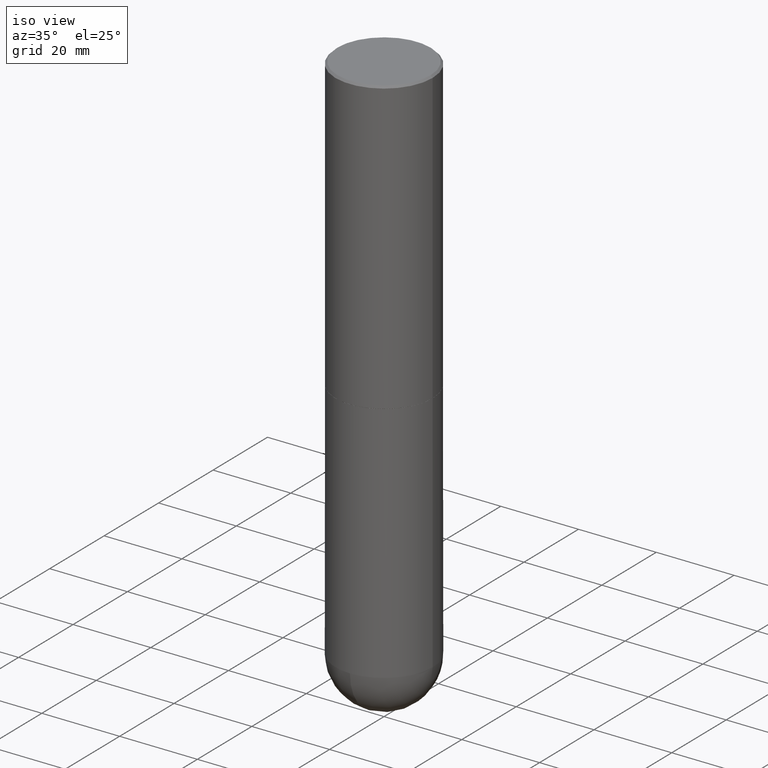
[diagram: clean part render]
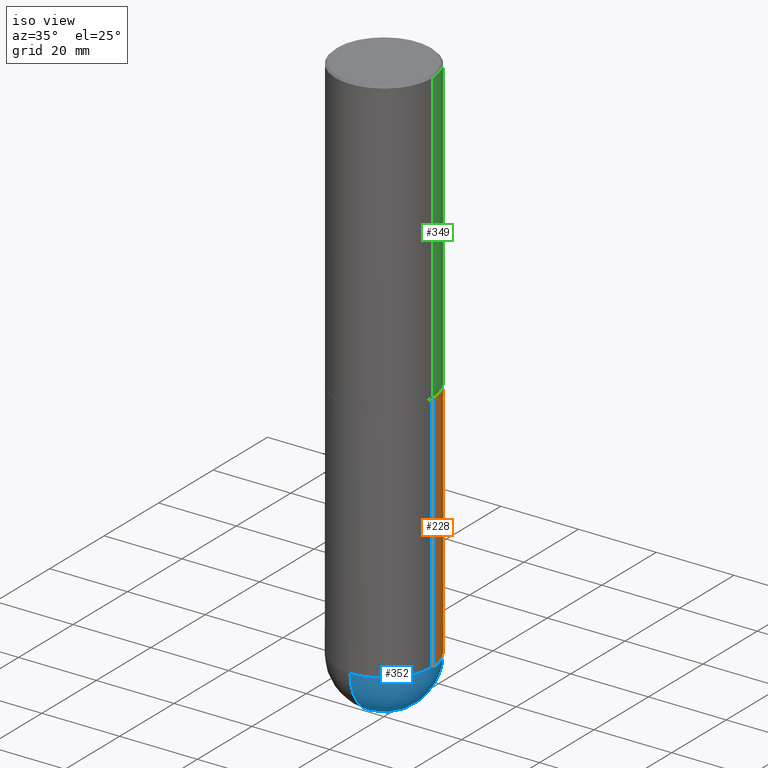
[diagram: same view with three faces highlighted in distinct colors, each labeled with its STEP entity id]
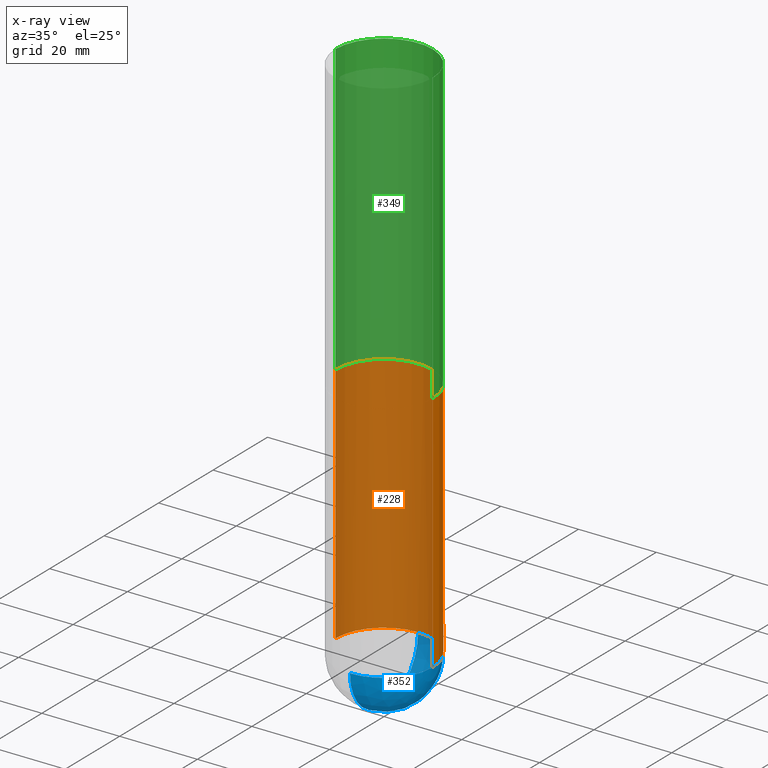
[diagram: x-ray of the same camera — body ghosted, the three highlighted faces saturated]
A machine part, iso view with three faces highlighted in distinct colors.
The next image is the same camera in x-ray (body ghosted, the three faces saturated) — at least one of them is partly hidden behind the body in this view.
Their STEP definitions:

[orange] entity #228 — the highlighted cylindrical surface (partial cylindrical patch) has radius 12.5006 mm, axis along (-0, 0, 1).
#17 = DIRECTION ( 'NONE',  ( 1.000000000000000000, -6.982962677686265922E-15, 0.000000000000000000 ) ) ;
#19 = AXIS2_PLACEMENT_3D ( 'NONE', #363, #191, #17 ) ;
#22 = DIRECTION ( 'NONE',  ( -2.445468806185136597E-29, 3.491481338843145583E-15, 1.000000000000000000 ) ) ;
#24 = CARTESIAN_POINT ( 'NONE',  ( -0.4921499999999999764, -1.110801765337101862E-14, -5.413349999999999440 ) ) ;
#28 = EDGE_CURVE ( 'NONE', #285, #208, #350, .T. ) ;
#31 = EDGE_CURVE ( 'NONE', #208, #78, #187, .T. ) ;
#43 = VERTEX_POINT ( 'NONE', #336 ) ;
#50 = AXIS2_PLACEMENT_3D ( 'NONE', #403, #335, #56 ) ;
#54 = DIRECTION ( 'NONE',  ( -2.445468806185136877E-29, 3.491481338843145188E-15, 1.000000000000000000 ) ) ;
#56 = DIRECTION ( 'NONE',  ( 1.000000000000000000, -6.982962677686265922E-15, 4.876176775795935793E-29 ) ) ;
#78 = VERTEX_POINT ( 'NONE', #24 ) ;
#79 = CARTESIAN_POINT ( 'NONE',  ( -0.4921499999999999764, 3.496936074043332897E-15, -2.420853904668951509E-29 ) ) ;
#100 = ORIENTED_EDGE ( 'NONE', *, *, #375, .T. ) ;
#104 = CARTESIAN_POINT ( 'NONE',  ( 1.323817856196230713E-28, -1.890061050562653856E-14, -5.413349999999999440 ) ) ;
#123 = VERTEX_POINT ( 'NONE', #256 ) ;
#128 = VECTOR ( 'NONE', #373, 39.37007874015748143 ) ;
#130 = CARTESIAN_POINT ( 'NONE',  ( 3.436665081823426728E-15, 0.4921499999999808250, -5.413350000000002105 ) ) ;
#136 = CARTESIAN_POINT ( 'NONE',  ( 0.4921499999999999764, -3.436665081823295777E-15, 2.399810400207969603E-29 ) ) ;
#156 = DIRECTION ( 'NONE',  ( -2.445468806185136597E-29, 3.491481338843145583E-15, 1.000000000000000000 ) ) ;
#159 = LINE ( 'NONE', #79, #251 ) ;
#162 = EDGE_CURVE ( 'NONE', #285, #123, #405, .T. ) ;
#167 = AXIS2_PLACEMENT_3D ( 'NONE', #104, #22, #213 ) ;
#187 = CIRCLE ( 'NONE', #292, 0.4921499999999999764 ) ;
#188 = CARTESIAN_POINT ( 'NONE',  ( 1.323817856196230713E-28, -1.890061050562653856E-14, -5.413349999999999440 ) ) ;
#191 = DIRECTION ( 'NONE',  ( -2.445468806185136597E-29, 3.491481338843145583E-15, 1.000000000000000000 ) ) ;
#198 = EDGE_LOOP ( 'NONE', ( #317, #100, #241, #257, #298 ) ) ;
#208 = VERTEX_POINT ( 'NONE', #130 ) ;
#213 = DIRECTION ( 'NONE',  ( 1.000000000000000000, -6.982962677686265922E-15, 0.000000000000000000 ) ) ;
#228 = ADVANCED_FACE ( 'NONE', ( #360 ), #299, .T. ) ;
#241 = ORIENTED_EDGE ( 'NONE', *, *, #266, .F. ) ;
#251 = VECTOR ( 'NONE', #54, 39.37007874015748143 ) ;
#256 = CARTESIAN_POINT ( 'NONE',  ( 0.4921499999999999764, -1.374596203102545079E-14, -2.952700000000000102 ) ) ;
#257 = ORIENTED_EDGE ( 'NONE', *, *, #162, .F. ) ;
#265 = CARTESIAN_POINT ( 'NONE',  ( 0.4921499999999999764, -1.804161880923764651E-14, -5.413349999999999440 ) ) ;
#266 = EDGE_CURVE ( 'NONE', #123, #43, #379, .T. ) ;
#273 = DIRECTION ( 'NONE',  ( 1.000000000000000000, -6.982962677686265922E-15, 0.000000000000000000 ) ) ;
#285 = VERTEX_POINT ( 'NONE', #265 ) ;
#292 = AXIS2_PLACEMENT_3D ( 'NONE', #188, #156, #273 ) ;
#298 = ORIENTED_EDGE ( 'NONE', *, *, #28, .T. ) ;
#299 = CYLINDRICAL_SURFACE ( 'NONE', #50, 0.4921499999999999764 ) ;
#317 = ORIENTED_EDGE ( 'NONE', *, *, #31, .T. ) ;
#335 = DIRECTION ( 'NONE',  ( -2.445468806185136597E-29, 3.491481338843145583E-15, 1.000000000000000000 ) ) ;
#336 = CARTESIAN_POINT ( 'NONE',  ( -0.4921499999999999764, -1.110801765337101547E-14, -2.952700000000000102 ) ) ;
#350 = CIRCLE ( 'NONE', #167, 0.4921499999999999764 ) ;
#360 = FACE_OUTER_BOUND ( 'NONE', #198, .T. ) ;
#363 = CARTESIAN_POINT ( 'NONE',  ( 7.220735744022852519E-29, -1.030929694920215502E-14, -2.952700000000000102 ) ) ;
#373 = DIRECTION ( 'NONE',  ( -2.445468806185136877E-29, 3.491481338843145188E-15, 1.000000000000000000 ) ) ;
#375 = EDGE_CURVE ( 'NONE', #78, #43, #159, .T. ) ;
#379 = CIRCLE ( 'NONE', #19, 0.4921499999999999764 ) ;
#403 = CARTESIAN_POINT ( 'NONE',  ( 0.000000000000000000, 0.000000000000000000, 0.000000000000000000 ) ) ;
#405 = LINE ( 'NONE', #136, #128 ) ;

[blue] entity #352 — the highlighted spherical surface has radius 12.5006 mm.
#11 = CARTESIAN_POINT ( 'NONE',  ( -3.496936074043201946E-15, -0.4921500000000192387, -5.413349999999997664 ) ) ;
#16 = EDGE_CURVE ( 'NONE', #173, #208, #382, .T. ) ;
#22 = DIRECTION ( 'NONE',  ( -2.445468806185136597E-29, 3.491481338843145583E-15, 1.000000000000000000 ) ) ;
#27 = AXIS2_PLACEMENT_3D ( 'NONE', #32, #286, #232 ) ;
#28 = EDGE_CURVE ( 'NONE', #285, #208, #350, .T. ) ;
#32 = CARTESIAN_POINT ( 'NONE',  ( 1.290705878404842200E-28, -1.937479287376659043E-14, -5.413349999999999440 ) ) ;
#45 = AXIS2_PLACEMENT_3D ( 'NONE', #370, #82, #190 ) ;
#55 = DIRECTION ( 'NONE',  ( 6.982962677686266711E-15, 1.000000000000000000, -4.440675393541420887E-15 ) ) ;
#72 = ORIENTED_EDGE ( 'NONE', *, *, #28, .F. ) ;
#82 = DIRECTION ( 'NONE',  ( -1.000000000000000000, 7.105427357601001070E-15, -4.926315508542082329E-29 ) ) ;
#104 = CARTESIAN_POINT ( 'NONE',  ( 1.323817856196230713E-28, -1.890061050562653856E-14, -5.413349999999999440 ) ) ;
#130 = CARTESIAN_POINT ( 'NONE',  ( 3.436665081823426728E-15, 0.4921499999999808250, -5.413350000000002105 ) ) ;
#149 = AXIS2_PLACEMENT_3D ( 'NONE', #247, #254, #55 ) ;
#151 = ORIENTED_EDGE ( 'NONE', *, *, #412, .F. ) ;
#154 = AXIS2_PLACEMENT_3D ( 'NONE', #160, #165, #253 ) ;
#160 = CARTESIAN_POINT ( 'NONE',  ( 1.323817856196230713E-28, -1.890061050562653856E-14, -5.413349999999999440 ) ) ;
#165 = DIRECTION ( 'NONE',  ( -2.445468806185136597E-29, 3.491481338843145583E-15, 1.000000000000000000 ) ) ;
#167 = AXIS2_PLACEMENT_3D ( 'NONE', #104, #22, #213 ) ;
#173 = VERTEX_POINT ( 'NONE', #397 ) ;
#179 = SPHERICAL_SURFACE ( 'NONE', #149, 0.4921500000000000874 ) ;
#190 = DIRECTION ( 'NONE',  ( -7.105427357601001070E-15, -1.000000000000000000, 0.000000000000000000 ) ) ;
#208 = VERTEX_POINT ( 'NONE', #130 ) ;
#213 = DIRECTION ( 'NONE',  ( 1.000000000000000000, -6.982962677686265922E-15, 0.000000000000000000 ) ) ;
#232 = DIRECTION ( 'NONE',  ( 6.982962677686265922E-15, 1.000000000000000000, 0.000000000000000000 ) ) ;
#233 = ORIENTED_EDGE ( 'NONE', *, *, #280, .F. ) ;
#247 = CARTESIAN_POINT ( 'NONE',  ( 1.290705878404842200E-28, -1.937479287376659043E-14, -5.413349999999999440 ) ) ;
#253 = DIRECTION ( 'NONE',  ( 1.000000000000000000, -6.982962677686265922E-15, 0.000000000000000000 ) ) ;
#254 = DIRECTION ( 'NONE',  ( -1.000000000000000000, 6.982962677686266711E-15, -4.883557194083112901E-29 ) ) ;
#260 = FACE_OUTER_BOUND ( 'NONE', #267, .T. ) ;
#265 = CARTESIAN_POINT ( 'NONE',  ( 0.4921499999999999764, -1.804161880923764651E-14, -5.413349999999999440 ) ) ;
#267 = EDGE_LOOP ( 'NONE', ( #151, #343, #72, #233 ) ) ;
#280 = EDGE_CURVE ( 'NONE', #378, #285, #366, .T. ) ;
#285 = VERTEX_POINT ( 'NONE', #265 ) ;
#286 = DIRECTION ( 'NONE',  ( 1.000000000000000000, -6.982962677686265922E-15, 4.883557194083112340E-29 ) ) ;
#340 = CIRCLE ( 'NONE', #45, 0.4921500000000000874 ) ;
#343 = ORIENTED_EDGE ( 'NONE', *, *, #16, .T. ) ;
#350 = CIRCLE ( 'NONE', #167, 0.4921499999999999764 ) ;
#352 = ADVANCED_FACE ( 'NONE', ( #260 ), #179, .T. ) ;
#366 = CIRCLE ( 'NONE', #154, 0.4921499999999999764 ) ;
#370 = CARTESIAN_POINT ( 'NONE',  ( 1.290705878404842200E-28, -1.937479287376659043E-14, -5.413349999999999440 ) ) ;
#378 = VERTEX_POINT ( 'NONE', #11 ) ;
#382 = CIRCLE ( 'NONE', #27, 0.4921500000000000874 ) ;
#397 = CARTESIAN_POINT ( 'NONE',  ( 1.413163976147341948E-28, -2.106298991856822883E-14, -5.905499999999999972 ) ) ;
#412 = EDGE_CURVE ( 'NONE', #173, #378, #340, .T. ) ;

[green] entity #349 — the highlighted cylindrical surface (partial cylindrical patch) has radius 12.5006 mm, axis along (-0, 0, 1).
#1 = DIRECTION ( 'NONE',  ( -2.445468806185136597E-29, 3.491481338843145583E-15, 1.000000000000000000 ) ) ;
#5 = CIRCLE ( 'NONE', #201, 0.4921500000000000319 ) ;
#6 = ORIENTED_EDGE ( 'NONE', *, *, #77, .F. ) ;
#25 = LINE ( 'NONE', #58, #411 ) ;
#35 = FACE_OUTER_BOUND ( 'NONE', #386, .T. ) ;
#58 = CARTESIAN_POINT ( 'NONE',  ( -0.4921500000000001984, 3.496936074043334475E-15, -2.420853904668952630E-29 ) ) ;
#62 = ORIENTED_EDGE ( 'NONE', *, *, #74, .T. ) ;
#74 = EDGE_CURVE ( 'NONE', #264, #315, #25, .T. ) ;
#77 = EDGE_CURVE ( 'NONE', #377, #81, #140, .T. ) ;
#81 = VERTEX_POINT ( 'NONE', #132 ) ;
#84 = CIRCLE ( 'NONE', #92, 0.4921500000000003094 ) ;
#92 = AXIS2_PLACEMENT_3D ( 'NONE', #243, #356, #209 ) ;
#93 = DIRECTION ( 'NONE',  ( -2.445468806185136877E-29, 3.491481338843145188E-15, 1.000000000000000000 ) ) ;
#98 = DIRECTION ( 'NONE',  ( -2.445468806185136877E-29, 3.491481338843145188E-15, 1.000000000000000000 ) ) ;
#103 = ORIENTED_EDGE ( 'NONE', *, *, #345, .T. ) ;
#132 = CARTESIAN_POINT ( 'NONE',  ( 0.4921500000000000319, -3.446223716380123138E-15, -0.02000000000000010797 ) ) ;
#140 = LINE ( 'NONE', #308, #383 ) ;
#146 = DIRECTION ( 'NONE',  ( 1.000000000000000000, -6.982962677686266711E-15, 4.876176775795935232E-29 ) ) ;
#177 = CYLINDRICAL_SURFACE ( 'NONE', #311, 0.4921500000000001984 ) ;
#186 = DIRECTION ( 'NONE',  ( -2.445468806185136597E-29, 3.491481338843145583E-15, 1.000000000000000000 ) ) ;
#189 = CARTESIAN_POINT ( 'NONE',  ( -0.4921500000000003094, -1.690881473276752982E-15, -2.951700000000000212 ) ) ;
#201 = AXIS2_PLACEMENT_3D ( 'NONE', #203, #186, #215 ) ;
#203 = CARTESIAN_POINT ( 'NONE',  ( 4.890937612370299433E-31, -6.982962677686328587E-17, -0.02000000000000010797 ) ) ;
#205 = CARTESIAN_POINT ( 'NONE',  ( -0.4921500000000000319, 3.366835455046432873E-15, -0.02000000000000010797 ) ) ;
#209 = DIRECTION ( 'NONE',  ( 1.000000000000000000, -6.982962677686265922E-15, 0.000000000000000000 ) ) ;
#215 = DIRECTION ( 'NONE',  ( 1.000000000000000000, -6.982962677686265922E-15, 0.000000000000000000 ) ) ;
#237 = ORIENTED_EDGE ( 'NONE', *, *, #369, .F. ) ;
#243 = CARTESIAN_POINT ( 'NONE',  ( 7.218290275216666916E-29, -1.030580546786331359E-14, -2.951700000000000212 ) ) ;
#264 = VERTEX_POINT ( 'NONE', #189 ) ;
#308 = CARTESIAN_POINT ( 'NONE',  ( 0.4921500000000001984, -3.436665081823297354E-15, 2.399810400207970443E-29 ) ) ;
#311 = AXIS2_PLACEMENT_3D ( 'NONE', #348, #1, #146 ) ;
#315 = VERTEX_POINT ( 'NONE', #205 ) ;
#345 = EDGE_CURVE ( 'NONE', #377, #264, #84, .T. ) ;
#348 = CARTESIAN_POINT ( 'NONE',  ( 0.000000000000000000, 0.000000000000000000, 0.000000000000000000 ) ) ;
#349 = ADVANCED_FACE ( 'NONE', ( #35 ), #177, .T. ) ;
#356 = DIRECTION ( 'NONE',  ( -2.445468806185136597E-29, 3.491481338843145583E-15, 1.000000000000000000 ) ) ;
#369 = EDGE_CURVE ( 'NONE', #81, #315, #5, .T. ) ;
#372 = CARTESIAN_POINT ( 'NONE',  ( 0.4921500000000003094, -1.374247054968661252E-14, -2.951700000000000212 ) ) ;
#377 = VERTEX_POINT ( 'NONE', #372 ) ;
#383 = VECTOR ( 'NONE', #98, 39.37007874015748143 ) ;
#386 = EDGE_LOOP ( 'NONE', ( #103, #62, #237, #6 ) ) ;
#411 = VECTOR ( 'NONE', #93, 39.37007874015748143 ) ;